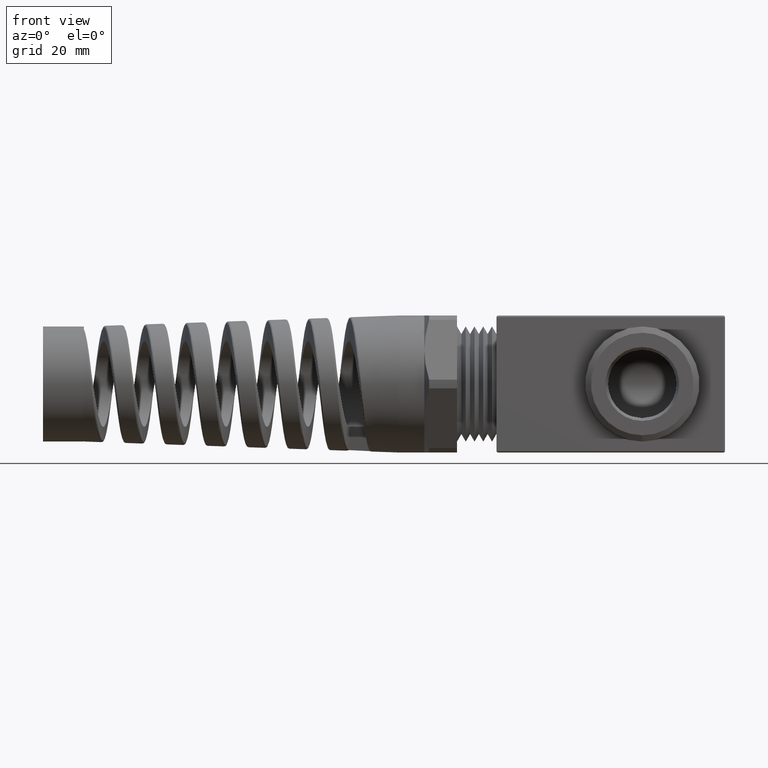
[diagram: clean part render]
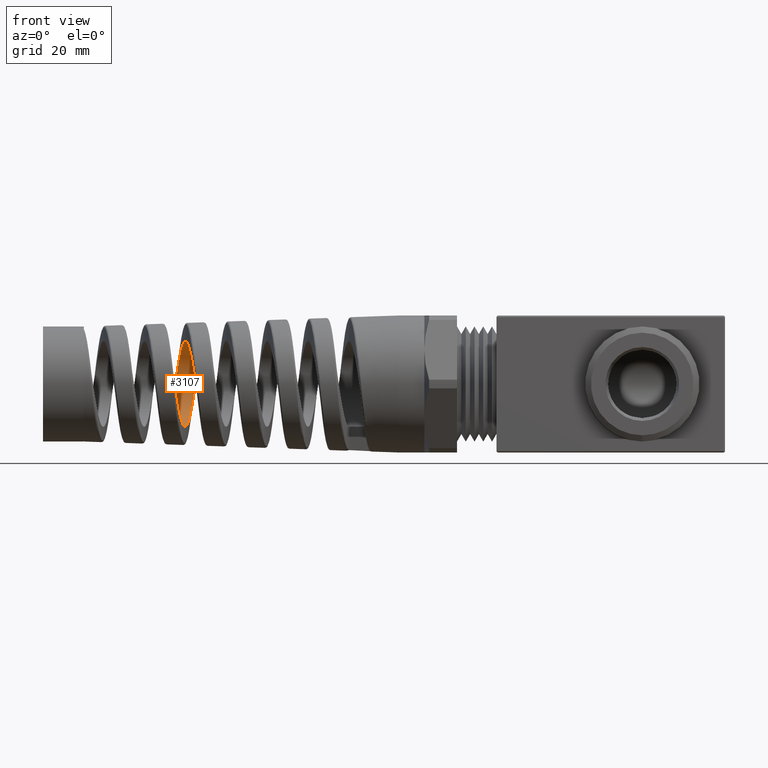
[diagram: same view with one face highlighted and labeled with its STEP entity id]
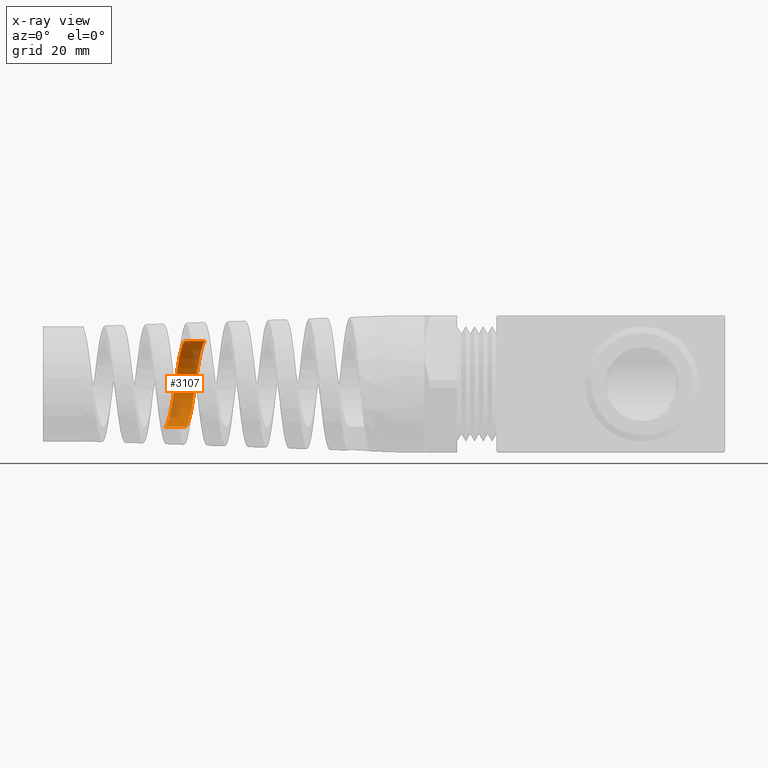
[diagram: x-ray of the same camera — body ghosted, the highlighted face saturated]
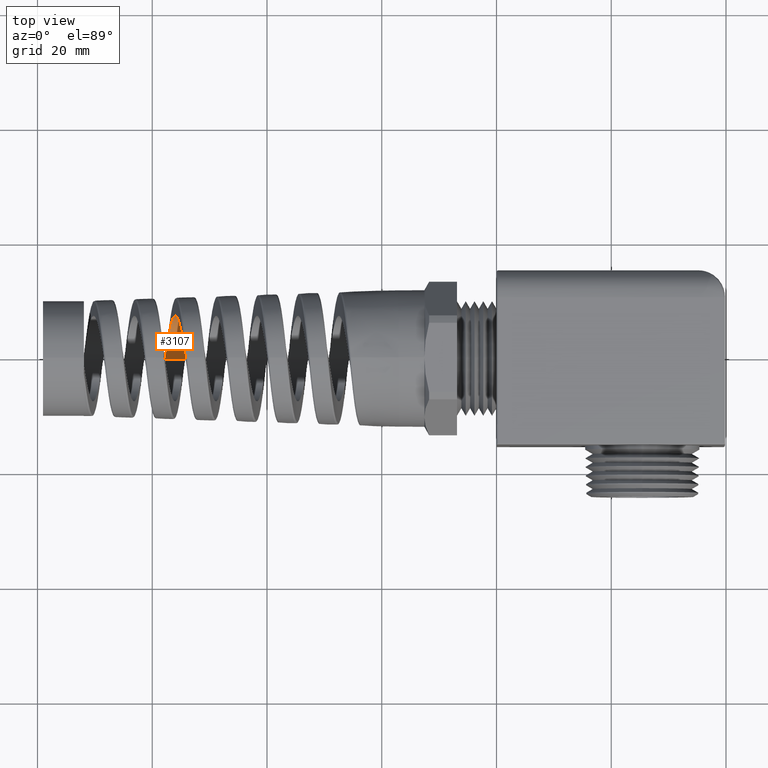
[diagram: same view with one face highlighted and labeled with its STEP entity id]
A machine part, front view. The second image highlights one B-rep face of the part: STEP entity #3107.
The next image is the same camera in x-ray: the body ghosted, the highlighted face saturated — about 19% of this face is hidden behind the body in this view.
A second angle (top view) of the same face is appended — the face is thin or edge-on in the first view.
In plain terms, the highlighted cylindrical surface (partial cylindrical patch) has radius 7.4828 mm, axis along (1, 0, 0).
Its self-contained STEP definition (entity closure, byte-faithful):
#3084 = ORIENTED_EDGE ( 'NONE', *, *, #3085, .F. ) ;
#3085 = EDGE_CURVE ( 'NONE', #7377, #7370, #8629, .T. ) ;
#3107 = ADVANCED_FACE ( 'NONE', ( #8830 ), #8891, .F. ) ;
#3108 = EDGE_LOOP ( 'NONE', ( #3109, #3110, #3112, #3084 ) ) ;
#3109 = ORIENTED_EDGE ( 'NONE', *, *, #7376, .F. ) ;
#3110 = ORIENTED_EDGE ( 'NONE', *, *, #3111, .F. ) ;
#3111 = EDGE_CURVE ( 'NONE', #7261, #7373, #8994, .T. ) ;
#3112 = ORIENTED_EDGE ( 'NONE', *, *, #7249, .T. ) ;
#7145 = CARTESIAN_POINT ( 'NONE',  ( -2.274803555863516000, 1.986992564141741700E-015, -0.2945990745134333100 ) ) ;
#7249 = EDGE_CURVE ( 'NONE', #7261, #7370, #7743, .T. ) ;
#7261 = VERTEX_POINT ( 'NONE', #7145 ) ;
#7370 = VERTEX_POINT ( 'NONE', #13534 ) ;
#7373 = VERTEX_POINT ( 'NONE', #13568 ) ;
#7376 = EDGE_CURVE ( 'NONE', #7373, #7377, #13562, .T. ) ;
#7377 = VERTEX_POINT ( 'NONE', #13558 ) ;
#7740 = DIRECTION ( 'NONE',  ( 1.000000000000000000, 0.0000000000000000000, 0.0000000000000000000 ) ) ;
#7741 = VECTOR ( 'NONE', #7740, 39.37007874015748100 ) ;
#7742 = CARTESIAN_POINT ( 'NONE',  ( 0.4924815508901369000, 0.0000000000000000000, -0.2945990745134332000 ) ) ;
#7743 = LINE ( 'NONE', #7742, #7741 ) ;
#8532 = CARTESIAN_POINT ( 'NONE',  ( -2.136447074192511700, -1.193476092232075000E-014, -0.2945990745134332000 ) ) ;
#8533 = CARTESIAN_POINT ( 'NONE',  ( -2.134974632667072200, 0.009700420793858893100, -0.2945990745134338100 ) ) ;
#8534 = CARTESIAN_POINT ( 'NONE',  ( -2.133498491102087800, 0.01942292481819394800, -0.2941159245016381500 ) ) ;
#8535 = CARTESIAN_POINT ( 'NONE',  ( -2.130572333188866200, 0.03859711132257871700, -0.2922185655489722400 ) ) ;
#8536 = CARTESIAN_POINT ( 'NONE',  ( -2.127658248522461100, 0.05759324682252568700, -0.2893912863940635800 ) ) ;
#8537 = CARTESIAN_POINT ( 'NONE',  ( -2.124742186658734200, 0.07623382685018224900, -0.2847279790204031400 ) ) ;
#8538 = CARTESIAN_POINT ( 'NONE',  ( -2.121813287459313600, 0.09469207463272484600, -0.2791326376384840600 ) ) ;
#8539 = CARTESIAN_POINT ( 'NONE',  ( -2.120333623688281000, 0.1038793266702191400, -0.2758468944175285800 ) ) ;
#8540 = CARTESIAN_POINT ( 'NONE',  ( -2.115922181567686100, 0.1307204360573741600, -0.2647187529463458400 ) ) ;
#8541 = CARTESIAN_POINT ( 'NONE',  ( -2.113021727908451600, 0.1476501374258149000, -0.2556508687666117500 ) ) ;
#8542 = CARTESIAN_POINT ( 'NONE',  ( -2.107188440378736400, 0.1796112589766754900, -0.2343026364166631300 ) ) ;
#8543 = CARTESIAN_POINT ( 'NONE',  ( -2.104225092962484800, 0.1947732627726146100, -0.2218624221837902600 ) ) ;
#8544 = CARTESIAN_POINT ( 'NONE',  ( -2.098373786606728200, 0.2220011613221886900, -0.1946151141097420800 ) ) ;
#8545 = CARTESIAN_POINT ( 'NONE',  ( -2.095472122882262100, 0.2341775422171927000, -0.1797828263326048400 ) ) ;
#8546 = CARTESIAN_POINT ( 'NONE',  ( -2.091077075065032700, 0.2502656762361595800, -0.1557202581777413200 ) ) ;
#8547 = CARTESIAN_POINT ( 'NONE',  ( -2.089596447690059500, 0.2552866999028415900, -0.1473465586144852800 ) ) ;
#8548 = CARTESIAN_POINT ( 'NONE',  ( -2.086657767006374600, 0.2644082553711675200, -0.1302711862784358100 ) ) ;
#8549 = CARTESIAN_POINT ( 'NONE',  ( -2.085198230938688700, 0.2685195842530053200, -0.1215648372391233600 ) ) ;
#8550 = CARTESIAN_POINT ( 'NONE',  ( -2.080827337636066400, 0.2795367606214848600, -0.09495505500108029900 ) ) ;
#8551 = CARTESIAN_POINT ( 'NONE',  ( -2.077923979274756600, 0.2851382057344738500, -0.07656545268885796300 ) ) ;
#8552 = CARTESIAN_POINT ( 'NONE',  ( -2.072023151744854200, 0.2927236443056605600, -0.03845689768218352900 ) ) ;
#8553 = CARTESIAN_POINT ( 'NONE',  ( -2.069100925459368400, 0.2945965260324637800, -0.01922841004712602300 ) ) ;
#8554 = CARTESIAN_POINT ( 'NONE',  ( -2.064729753384036700, 0.2946003448647929200, 0.009555577403158859600 ) ) ;
#8555 = CARTESIAN_POINT ( 'NONE',  ( -2.063272041436898800, 0.2941340013539964200, 0.01915698042050726500 ) ) ;
#8556 = CARTESIAN_POINT ( 'NONE',  ( -2.060340818606742500, 0.2922489409228130100, 0.03837130673874219300 ) ) ;
#8557 = CARTESIAN_POINT ( 'NONE',  ( -2.058859767759907200, 0.2908176540312754600, 0.04803423310615642000 ) ) ;
#8558 = CARTESIAN_POINT ( 'NONE',  ( -2.054455004268142200, 0.2851511495494872800, 0.07649679459622094100 ) ) ;
#8559 = CARTESIAN_POINT ( 'NONE',  ( -2.051555801659590300, 0.2795687478790310200, 0.09486645946004596000 ) ) ;
#8560 = CARTESIAN_POINT ( 'NONE',  ( -2.045717394257093400, 0.2648659383674162900, 0.1304007845600698400 ) ) ;
#8561 = CARTESIAN_POINT ( 'NONE',  ( -2.042750549107554400, 0.2556206201898606500, 0.1477061230620411400 ) ) ;
#8562 = CARTESIAN_POINT ( 'NONE',  ( -2.036903045686939300, 0.2342315647226182500, 0.1797069123430197500 ) ) ;
#8628 = CARTESIAN_POINT ( 'NONE',  ( -1.995921219969856200, 1.346715690626679700E-015, 0.2945990745134332000 ) ) ;
#8629 = B_SPLINE_CURVE_WITH_KNOTS ( 'NONE', 3,
 ( #8628, #8643, #8642, #8641, #8640, #8639, #8638, #8637, #8636, #8635, #8634, #8633, #8632, #8631, #8562, #8561, #8560, #8559, #8558, #8557, #8556, #8555, #8554, #8553, #8552, #8551, #8550, #8549, #8548, #8547, #8546, #8545, #8544, #8543, #8542, #8541, #8540, #8539, #8538, #8537, #8536, #8535, #8534, #8533, #8532 ),
 .UNSPECIFIED., .F., .F.,
 ( 4, 2, 2, 2, 2, 2, 2, 2, 2, 2, 2, 2, 2, 2, 2, 2, 2, 2, 2, 2, 1, 2, 4 ),
 ( 0.1667181925262789500, 0.1674576098786481600, 0.1681970272310173700, 0.1696758619357557900, 0.1711546966404942400, 0.1718941139928634500, 0.1726335313452326500, 0.1741123660499710700, 0.1755912007547094900, 0.1770700354594479100, 0.1778094528118171200, 0.1785488701641863300, 0.1800277048689247500, 0.1815065395736631900, 0.1822459569260324000, 0.1829853742784016100, 0.1844642089831400300, 0.1859430436878784500, 0.1874218783926168700, 0.1881612957449860800, 0.1889007130973552900, 0.1896401304497245000, 0.1903795478020937100 ),
 .UNSPECIFIED. ) ;
#8631 = CARTESIAN_POINT ( 'NONE',  ( -2.034003234974795800, 0.2220635124986728200, 0.1945495944790746100 ) ) ;
#8632 = CARTESIAN_POINT ( 'NONE',  ( -2.029604780134630200, 0.2015847364905062300, 0.2150476508032273000 ) ) ;
#8633 = CARTESIAN_POINT ( 'NONE',  ( -2.028123563757815000, 0.1943464162608879700, 0.2216112763560567100 ) ) ;
#8634 = CARTESIAN_POINT ( 'NONE',  ( -2.025188981381165700, 0.1793982531061970900, 0.2338767925726190100 ) ) ;
#8635 = CARTESIAN_POINT ( 'NONE',  ( -2.023730605477616100, 0.1716682440522635800, 0.2396053782204294000 ) ) ;
#8636 = CARTESIAN_POINT ( 'NONE',  ( -2.019360368479699000, 0.1477297940841072700, 0.2556031239635440700 ) ) ;
#8637 = CARTESIAN_POINT ( 'NONE',  ( -2.016453490718997700, 0.1307800534909362400, 0.2646956196424029600 ) ) ;
#8638 = CARTESIAN_POINT ( 'NONE',  ( -2.010541463422038400, 0.09483172610386679500, 0.2795963826181036600 ) ) ;
#8639 = CARTESIAN_POINT ( 'NONE',  ( -2.007631700690821300, 0.07640292018014205300, 0.2851658605933769000 ) ) ;
#8640 = CARTESIAN_POINT ( 'NONE',  ( -2.003260747370820400, 0.04816913175484995000, 0.2907927773159370600 ) ) ;
#8641 = CARTESIAN_POINT ( 'NONE',  ( -2.001802376865889200, 0.03865579304705547800, 0.2922117883801802500 ) ) ;
#8642 = CARTESIAN_POINT ( 'NONE',  ( -1.998868904805002800, 0.01942274560466310600, 0.2941169096764356100 ) ) ;
#8643 = CARTESIAN_POINT ( 'NONE',  ( -1.997387709593915400, 0.009662724655619139800, 0.2945990745134332000 ) ) ;
#8830 = FACE_OUTER_BOUND ( 'NONE', #3108, .T. ) ;
#8887 = DIRECTION ( 'NONE',  ( 0.0000000000000000000, 0.0000000000000000000, -1.000000000000000000 ) ) ;
#8888 = DIRECTION ( 'NONE',  ( 1.000000000000000000, 0.0000000000000000000, 0.0000000000000000000 ) ) ;
#8889 = CARTESIAN_POINT ( 'NONE',  ( 0.4924815508901369000, 0.0000000000000000000, 0.0000000000000000000 ) ) ;
#8890 = AXIS2_PLACEMENT_3D ( 'NONE', #8889, #8888, #8887 ) ;
#8891 = CYLINDRICAL_SURFACE ( 'NONE', #8890, 0.2945990745134332000 ) ;
#8949 = CARTESIAN_POINT ( 'NONE',  ( -2.134537769860675600, 2.589919953368424500E-014, 0.2945990745134332000 ) ) ;
#8950 = CARTESIAN_POINT ( 'NONE',  ( -2.137448349752689500, 0.01920971512574101000, 0.2945990745134315900 ) ) ;
#8951 = CARTESIAN_POINT ( 'NONE',  ( -2.140345715256796800, 0.03834100191469428500, 0.2927378706462202600 ) ) ;
#8952 = CARTESIAN_POINT ( 'NONE',  ( -2.144758354822342600, 0.06690329753844628800, 0.2870658167410168900 ) ) ;
#8953 = CARTESIAN_POINT ( 'NONE',  ( -2.146231247824757400, 0.07634052725138744400, 0.2846990527931750300 ) ) ;
#8954 = CARTESIAN_POINT ( 'NONE',  ( -2.149152278363192900, 0.09477783984187504500, 0.2791031849285471300 ) ) ;
#8955 = CARTESIAN_POINT ( 'NONE',  ( -2.150606853596281500, 0.1038198339706333400, 0.2758661724361142800 ) ) ;
#8956 = CARTESIAN_POINT ( 'NONE',  ( -2.153516821141801400, 0.1215528199948179600, 0.2685248870617937800 ) ) ;
#8957 = CARTESIAN_POINT ( 'NONE',  ( -2.154971741067324100, 0.1302438798885872700, 0.2644205903910125700 ) ) ;
#8958 = CARTESIAN_POINT ( 'NONE',  ( -2.157896742939597000, 0.1472672136332510200, 0.2553313233033949700 ) ) ;
#8959 = CARTESIAN_POINT ( 'NONE',  ( -2.159374862553252100, 0.1556435906748411300, 0.2503147425711962900 ) ) ;
#8960 = CARTESIAN_POINT ( 'NONE',  ( -2.163777518434284900, 0.1797982209694559100, 0.2341716171748217900 ) ) ;
#8961 = CARTESIAN_POINT ( 'NONE',  ( -2.166673000720110000, 0.1946388058462378000, 0.2219773925712376600 ) ) ;
#8962 = CARTESIAN_POINT ( 'NONE',  ( -2.172498519059381300, 0.2218372907165696900, 0.1947984702237338700 ) ) ;
#8963 = CARTESIAN_POINT ( 'NONE',  ( -2.175458265271738700, 0.2342880672808188000, 0.1796347888535105900 ) ) ;
#8964 = CARTESIAN_POINT ( 'NONE',  ( -2.181298756071037700, 0.2556816573720883100, 0.1476023235592476600 ) ) ;
#8965 = CARTESIAN_POINT ( 'NONE',  ( -2.184194443267665000, 0.2647359445882869800, 0.1306762579577937000 ) ) ;
#8966 = CARTESIAN_POINT ( 'NONE',  ( -2.188584009066707500, 0.2758291982456713100, 0.1039233641247469400 ) ) ;
#8967 = CARTESIAN_POINT ( 'NONE',  ( -2.190062710866387700, 0.2791223629362668500, 0.09472584507431273900 ) ) ;
#8968 = CARTESIAN_POINT ( 'NONE',  ( -2.192995504537562600, 0.2847376165839079500, 0.07620215822588824500 ) ) ;
#8969 = CARTESIAN_POINT ( 'NONE',  ( -2.194452364773558500, 0.2870720821629911300, 0.06686121422867516400 ) ) ;
#8970 = CARTESIAN_POINT ( 'NONE',  ( -2.198816085006169500, 0.2926886552866165300, 0.03860979482086986800 ) ) ;
#8971 = CARTESIAN_POINT ( 'NONE',  ( -2.201715861616023100, 0.2945970608431478000, 0.01947285039477220100 ) ) ;
#8972 = CARTESIAN_POINT ( 'NONE',  ( -2.207610736157902900, 0.2946010850285013000, -0.01941187419978319600 ) ) ;
#8973 = CARTESIAN_POINT ( 'NONE',  ( -2.210523529447341800, 0.2926869052378732200, -0.03861912920796026900 ) ) ;
#8974 = CARTESIAN_POINT ( 'NONE',  ( -2.214887616406890000, 0.2870724918246495000, -0.06685888778121640300 ) ) ;
#8975 = CARTESIAN_POINT ( 'NONE',  ( -2.216343539039096600, 0.2847405445790255900, -0.07618880914071467200 ) ) ;
#8976 = CARTESIAN_POINT ( 'NONE',  ( -2.219271085962035300, 0.2791383437640697100, -0.09467680500572656100 ) ) ;
#8977 = CARTESIAN_POINT ( 'NONE',  ( -2.220750045666741300, 0.2758466948419551200, -0.1038786122464358800 ) ) ;
#8978 = CARTESIAN_POINT ( 'NONE',  ( -2.225146057259183200, 0.2647351664477583000, -0.1306832356626806100 ) ) ;
#8979 = CARTESIAN_POINT ( 'NONE',  ( -2.228040725439708300, 0.2556738795265508000, -0.1476127819866360800 ) ) ;
#8980 = CARTESIAN_POINT ( 'NONE',  ( -2.233871845509861000, 0.2343070591662780000, -0.1796075391035734100 ) ) ;
#8981 = CARTESIAN_POINT ( 'NONE',  ( -2.236834559269041300, 0.2218563280734208400, -0.1947787778709776400 ) ) ;
#8982 = CARTESIAN_POINT ( 'NONE',  ( -2.242668994126272100, 0.1946300097216167600, -0.2219868508062951600 ) ) ;
#8983 = CARTESIAN_POINT ( 'NONE',  ( -2.245564879630882200, 0.1797936781199367400, -0.2341718543113864800 ) ) ;
#8984 = CARTESIAN_POINT ( 'NONE',  ( -2.249957972999016200, 0.1556900526518702800, -0.2502850865398666400 ) ) ;
#8985 = CARTESIAN_POINT ( 'NONE',  ( -2.251436948242931700, 0.1473060853526055000, -0.2553095620183907200 ) ) ;
#8986 = CARTESIAN_POINT ( 'NONE',  ( -2.254365794153034400, 0.1302526803037285200, -0.2644168952877751800 ) ) ;
#8987 = CARTESIAN_POINT ( 'NONE',  ( -2.255821635981839300, 0.1215525969431700000, -0.2685250788611452400 ) ) ;
#8988 = CARTESIAN_POINT ( 'NONE',  ( -2.260185092035124700, 0.09494596827259671500, -0.2795396683841432400 ) ) ;
#8989 = CARTESIAN_POINT ( 'NONE',  ( -2.263090157518846900, 0.07652789358686976100, -0.2851506757034041300 ) ) ;
#8990 = CARTESIAN_POINT ( 'NONE',  ( -2.268992264997363500, 0.03834875829067965800, -0.2927401562623656600 ) ) ;
#8991 = CARTESIAN_POINT ( 'NONE',  ( -2.271894016766163200, 0.01919905368958903600, -0.2945990745134329800 ) ) ;
#8992 = CARTESIAN_POINT ( 'NONE',  ( -2.274803555863516000, 1.986992564141741700E-015, -0.2945990745134333100 ) ) ;
#8994 = B_SPLINE_CURVE_WITH_KNOTS ( 'NONE', 3,
 ( #8992, #8991, #8990, #8989, #8988, #8987, #8986, #8985, #8984, #8983, #8982, #8981, #8980, #8979, #8978, #8977, #8976, #8975, #8974, #8973, #8972, #8971, #8970, #8969, #8968, #8967, #8966, #8965, #8964, #8963, #8962, #8961, #8960, #8959, #8958, #8957, #8956, #8955, #8954, #8953, #8952, #8951, #8950, #8949 ),
 .UNSPECIFIED., .F., .F.,
 ( 4, 2, 2, 2, 2, 2, 2, 2, 2, 2, 2, 2, 2, 2, 2, 2, 2, 2, 2, 2, 2, 4 ),
 ( 0.09359472515391276100, 0.09506947853010908100, 0.09654423190630540000, 0.09728160859440357400, 0.09801898528250173300, 0.09949373865869805300, 0.1009684920348943700, 0.1024432454110906900, 0.1031806220991888500, 0.1039179987872870100, 0.1053927521634833300, 0.1068675055396796500, 0.1076048822277778100, 0.1083422589158759700, 0.1098170122920722900, 0.1112917656682686100, 0.1127665190444649300, 0.1135038957325630900, 0.1142412724206612500, 0.1149786491087594100, 0.1157160257968575700, 0.1171907791730538900 ),
 .UNSPECIFIED. ) ;
#13534 = CARTESIAN_POINT ( 'NONE',  ( -2.136447074192511700, -1.193476092232075000E-014, -0.2945990745134332000 ) ) ;
#13558 = CARTESIAN_POINT ( 'NONE',  ( -1.995921219969856200, 1.346715690626679700E-015, 0.2945990745134332000 ) ) ;
#13559 = DIRECTION ( 'NONE',  ( 1.000000000000000000, 0.0000000000000000000, 0.0000000000000000000 ) ) ;
#13560 = VECTOR ( 'NONE', #13559, 39.37007874015748100 ) ;
#13561 = CARTESIAN_POINT ( 'NONE',  ( 0.4924815508901369000, 3.607798136346486400E-017, 0.2945990745134332000 ) ) ;
#13562 = LINE ( 'NONE', #13561, #13560 ) ;
#13568 = CARTESIAN_POINT ( 'NONE',  ( -2.134537769860675600, 2.589919953368424500E-014, 0.2945990745134332000 ) ) ;